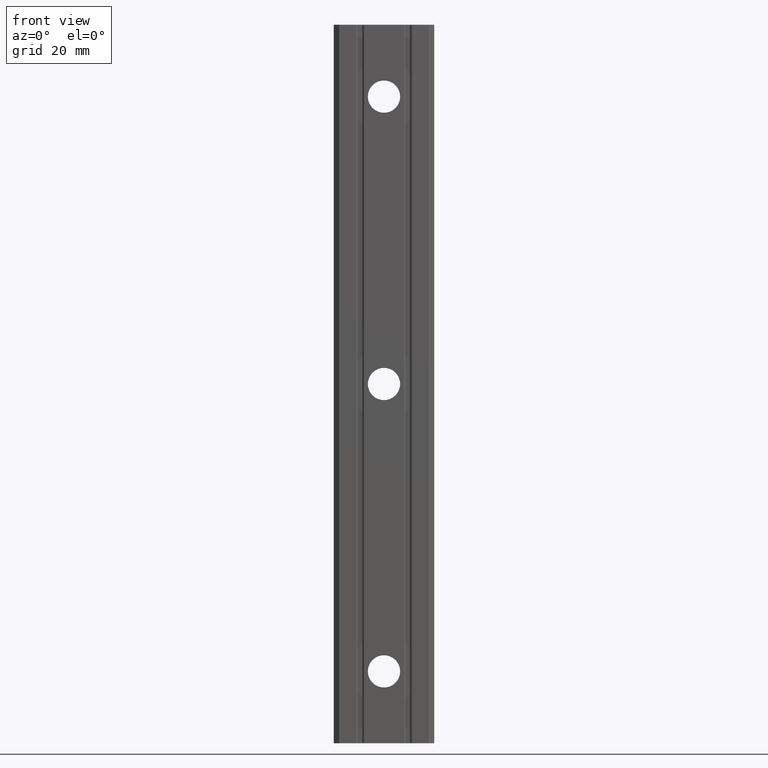
[diagram: clean part render]
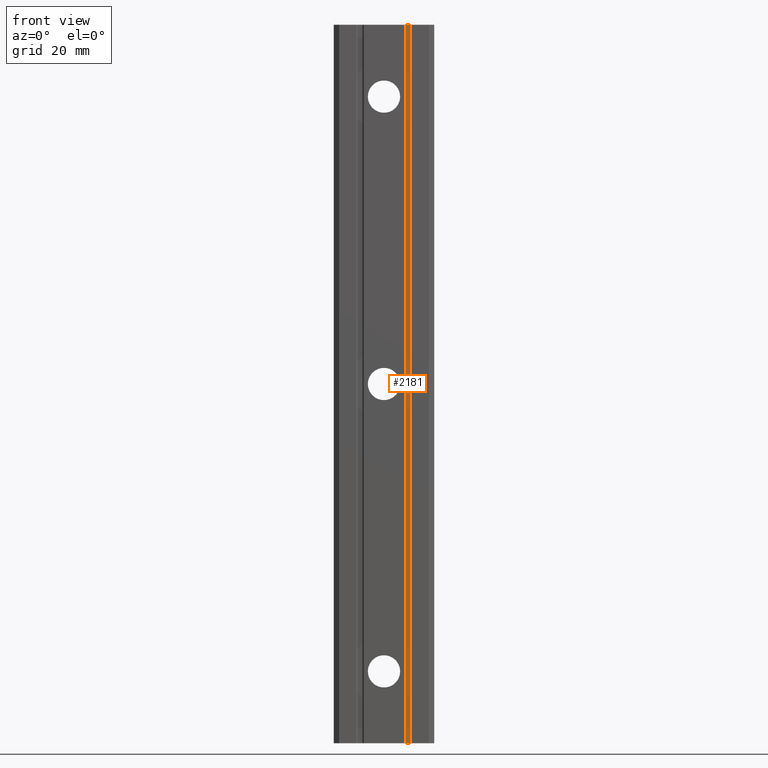
[diagram: same view with one face highlighted and labeled with its STEP entity id]
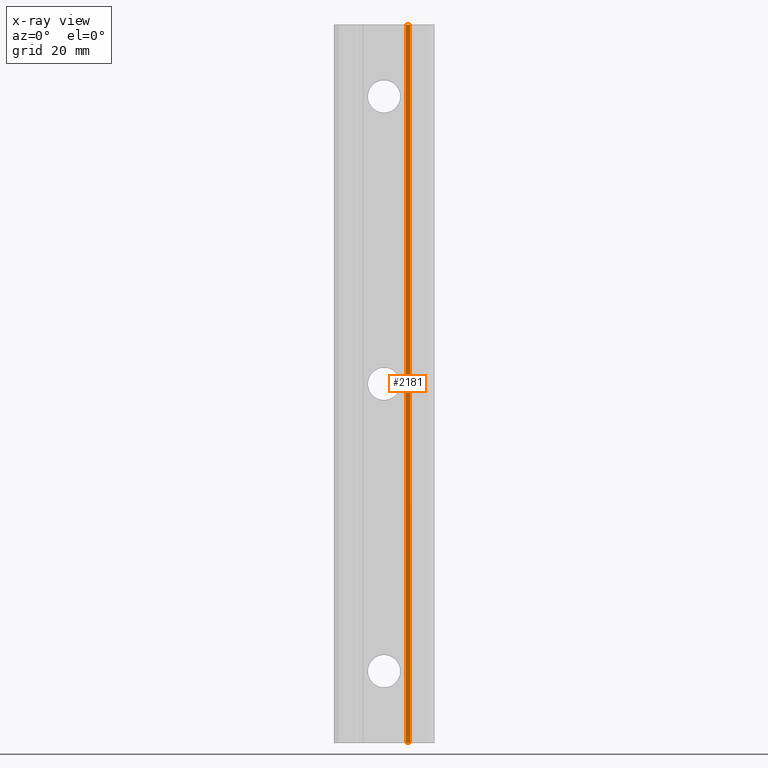
[diagram: x-ray of the same camera — body ghosted, the highlighted face saturated]
A machine part, front view. The second image highlights one B-rep face of the part: STEP entity #2181.
The next image is the same camera in x-ray: the body ghosted, the highlighted face saturated — about 0% of this face is hidden behind the body in this view.
In plain terms, the highlighted planar face has unit normal (0, -1, 0).
Its self-contained STEP definition (entity closure, byte-faithful):
#1450 = DIRECTION ( 'NONE',  ( 0.0000000000000000000, 0.0000000000000000000, 1.000000000000000000 ) ) ;
#1451 = VECTOR ( 'NONE', #1450, 1000.000000000000000 ) ;
#1452 = CARTESIAN_POINT ( 'NONE',  ( 6.050000000000248500, -25.50000000000024900, -100.0000000000000000 ) ) ;
#1453 = LINE ( 'NONE', #1452, #1451 ) ;
#1477 = CARTESIAN_POINT ( 'NONE',  ( 6.050000000000125100, -25.50000000000012800, 100.0000000000000000 ) ) ;
#1519 = DIRECTION ( 'NONE',  ( -1.000000000000000000, 0.0000000000000000000, 0.0000000000000000000 ) ) ;
#1520 = VECTOR ( 'NONE', #1519, 1000.000000000000000 ) ;
#1521 = CARTESIAN_POINT ( 'NONE',  ( 6.049999999999999800, -25.50000000000000400, 100.0000000000000000 ) ) ;
#1522 = LINE ( 'NONE', #1521, #1520 ) ;
#1548 = DIRECTION ( 'NONE',  ( 0.0000000000000000000, 0.0000000000000000000, -1.000000000000000000 ) ) ;
#1549 = VECTOR ( 'NONE', #1548, 1000.000000000000000 ) ;
#1550 = CARTESIAN_POINT ( 'NONE',  ( 7.250000000000000000, -25.50000000000000400, -100.0000000000000000 ) ) ;
#1551 = LINE ( 'NONE', #1550, #1549 ) ;
#1569 = CARTESIAN_POINT ( 'NONE',  ( 7.250000000000000000, -25.50000000000000400, 100.0000000000000000 ) ) ;
#1682 = DIRECTION ( 'NONE',  ( 0.0000000000000000000, 0.0000000000000000000, -1.000000000000000000 ) ) ;
#1683 = DIRECTION ( 'NONE',  ( 0.0000000000000000000, -1.000000000000000000, 0.0000000000000000000 ) ) ;
#1684 = CARTESIAN_POINT ( 'NONE',  ( 6.049999999999999800, -25.50000000000000400, -100.0000000000000000 ) ) ;
#1685 = AXIS2_PLACEMENT_3D ( 'NONE', #1684, #1683, #1682 ) ;
#1686 = PLANE ( 'NONE',  #1685 ) ;
#1687 = FACE_OUTER_BOUND ( 'NONE', #2258, .T. ) ;
#1698 = CARTESIAN_POINT ( 'NONE',  ( 6.049999999999999800, -25.50000000000000400, -100.0000000000000000 ) ) ;
#1788 = CARTESIAN_POINT ( 'NONE',  ( 7.250000000000000000, -25.50000000000000400, -100.0000000000000000 ) ) ;
#1811 = DIRECTION ( 'NONE',  ( 1.000000000000000000, 0.0000000000000000000, 0.0000000000000000000 ) ) ;
#1812 = VECTOR ( 'NONE', #1811, 1000.000000000000000 ) ;
#1813 = CARTESIAN_POINT ( 'NONE',  ( 6.049999999999999800, -25.50000000000000400, -100.0000000000000000 ) ) ;
#1814 = LINE ( 'NONE', #1813, #1812 ) ;
#2060 = VERTEX_POINT ( 'NONE', #1477 ) ;
#2074 = ORIENTED_EDGE ( 'NONE', *, *, #2077, .F. ) ;
#2077 = EDGE_CURVE ( 'NONE', #2176, #2060, #1453, .T. ) ;
#2104 = EDGE_CURVE ( 'NONE', #2108, #2060, #1522, .T. ) ;
#2107 = ORIENTED_EDGE ( 'NONE', *, *, #2116, .F. ) ;
#2108 = VERTEX_POINT ( 'NONE', #1569 ) ;
#2114 = ORIENTED_EDGE ( 'NONE', *, *, #2104, .T. ) ;
#2116 = EDGE_CURVE ( 'NONE', #2108, #2226, #1551, .T. ) ;
#2176 = VERTEX_POINT ( 'NONE', #1698 ) ;
#2181 = ADVANCED_FACE ( 'NONE', ( #1687 ), #1686, .T. ) ;
#2226 = VERTEX_POINT ( 'NONE', #1788 ) ;
#2252 = ORIENTED_EDGE ( 'NONE', *, *, #2253, .T. ) ;
#2253 = EDGE_CURVE ( 'NONE', #2176, #2226, #1814, .T. ) ;
#2258 = EDGE_LOOP ( 'NONE', ( #2074, #2252, #2107, #2114 ) ) ;